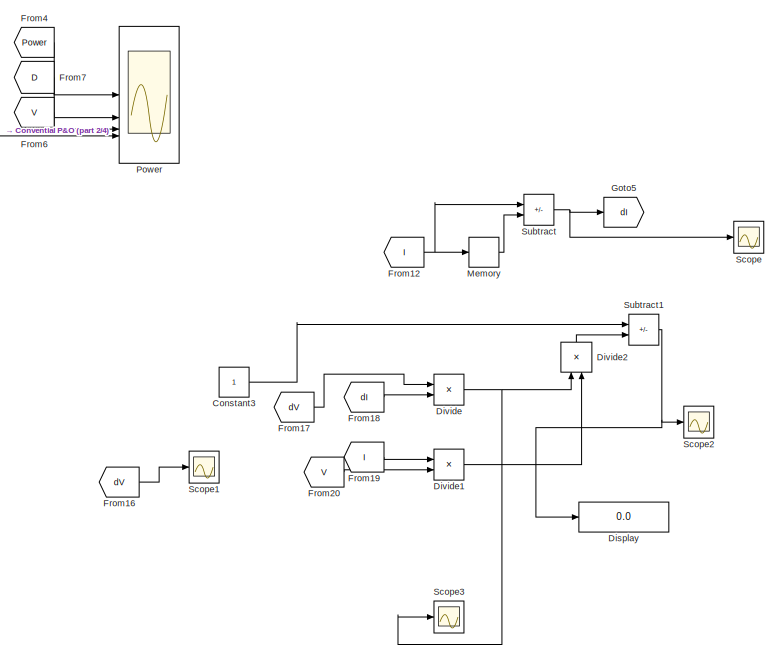
[diagram: root canvas - part 1/4, top right region]
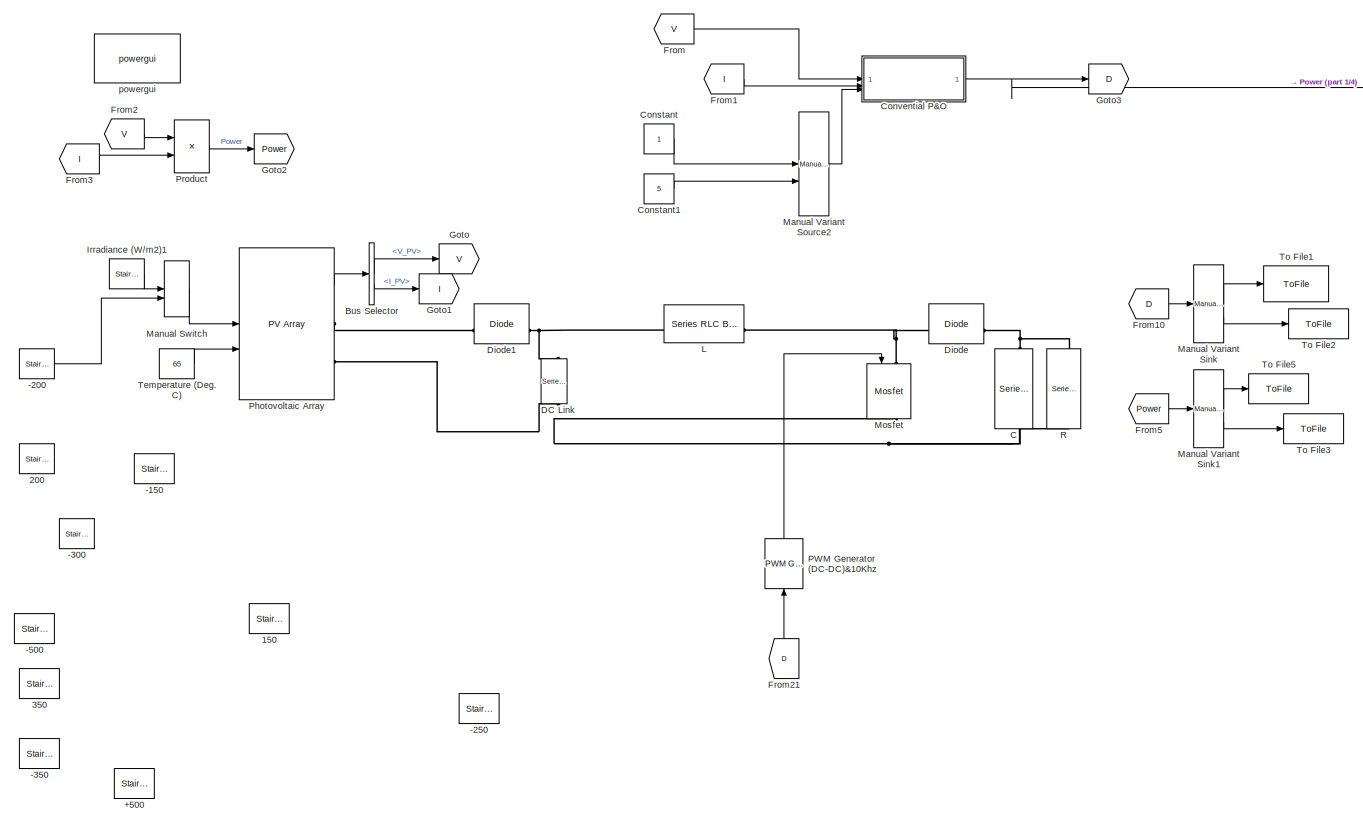
[diagram: root canvas - part 2/4, central region]
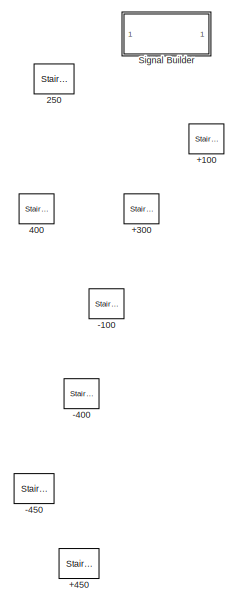
[diagram: root canvas - part 3/4, middle left region]
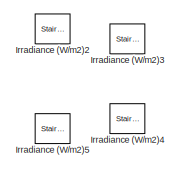
[diagram: root canvas - part 4/4, bottom left region]
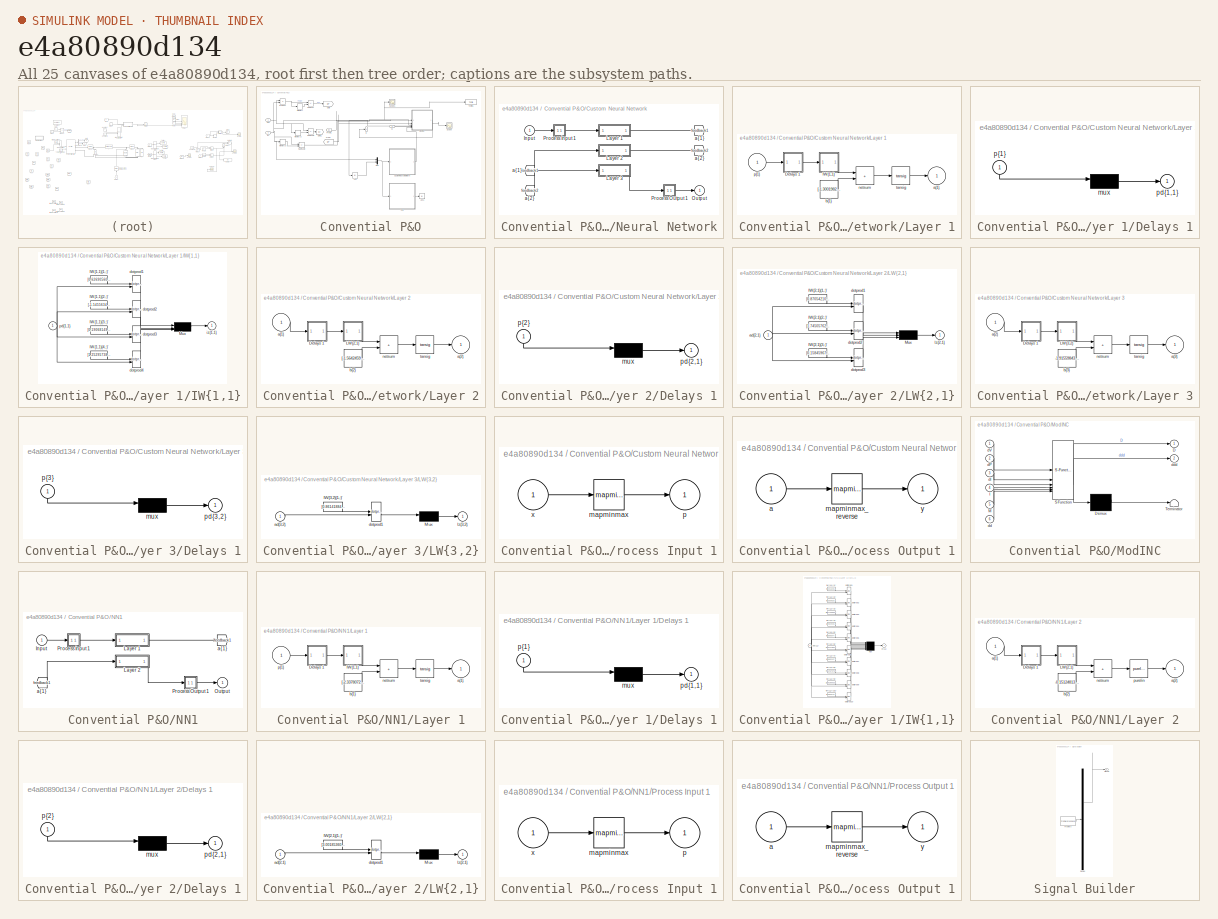
[diagram: thumbnail index - all 25 canvases of the model, root first then tree order]
MODEL slx_e4a80890d134
KIND model
CONFIG AbsTol = auto
CONFIG EnableMultiTasking = off
CONFIG FixedStep = auto
CONFIG MaxStep = auto
CONFIG MinStep = auto
CONFIG RelTol = 1e-3
CONFIG SampleTimeConstraint = Unconstrained
CONFIG SolverName = ode23tb
CONFIG StartTime = 0.0
CONFIG StopTime = 1.5
WORKSPACE source: mxarray member
WORKSPACE F: Simulink.Parameter (value not decoded)
BLOCK [Reference] +100  REF=spsStairGeneratorLib/Stair
Generator
  LibrarySourceBlock = sps_lib/Sources/Signal Generator Sources/Stair\nGenerator
  NameLocation = top
  SourceBlock = spsStairGeneratorLib/Stair\nGenerator
  SourceType = Stair Generator
BLOCK [Reference] +300  REF=spsStairGeneratorLib/Stair
Generator
  LibrarySourceBlock = sps_lib/Sources/Signal Generator Sources/Stair\nGenerator
  NameLocation = top
  SourceBlock = spsStairGeneratorLib/Stair\nGenerator
  SourceType = Stair Generator
BLOCK [Reference] +450  REF=spsStairGeneratorLib/Stair
Generator
  LibrarySourceBlock = sps_lib/Sources/Signal Generator Sources/Stair\nGenerator
  NameLocation = top
  SourceBlock = spsStairGeneratorLib/Stair\nGenerator
  SourceType = Stair Generator
BLOCK [Reference] +500  REF=spsStairGeneratorLib/Stair
Generator
  LibrarySourceBlock = sps_lib/Sources/Signal Generator Sources/Stair\nGenerator
  NameLocation = top
  SourceBlock = spsStairGeneratorLib/Stair\nGenerator
  SourceType = Stair Generator
BLOCK [Reference] -100  REF=spsStairGeneratorLib/Stair
Generator
  LibrarySourceBlock = sps_lib/Sources/Signal Generator Sources/Stair\nGenerator
  NameLocation = top
  SourceBlock = spsStairGeneratorLib/Stair\nGenerator
  SourceType = Stair Generator
BLOCK [Reference] -150  REF=spsStairGeneratorLib/Stair
Generator
  LibrarySourceBlock = sps_lib/Sources/Signal Generator Sources/Stair\nGenerator
  NameLocation = top
  SourceBlock = spsStairGeneratorLib/Stair\nGenerator
  SourceType = Stair Generator
BLOCK [Reference] -200  REF=spsStairGeneratorLib/Stair
Generator
  LibrarySourceBlock = sps_lib/Sources/Signal Generator Sources/Stair\nGenerator
  NameLocation = top
  SourceBlock = spsStairGeneratorLib/Stair\nGenerator
  SourceType = Stair Generator
BLOCK [Reference] -250  REF=spsStairGeneratorLib/Stair
Generator
  LibrarySourceBlock = sps_lib/Sources/Signal Generator Sources/Stair\nGenerator
  NameLocation = top
  SourceBlock = spsStairGeneratorLib/Stair\nGenerator
  SourceType = Stair Generator
BLOCK [Reference] -300  REF=spsStairGeneratorLib/Stair
Generator
  LibrarySourceBlock = sps_lib/Sources/Signal Generator Sources/Stair\nGenerator
  NameLocation = top
  SourceBlock = spsStairGeneratorLib/Stair\nGenerator
  SourceType = Stair Generator
BLOCK [Reference] -350  REF=spsStairGeneratorLib/Stair
Generator
  LibrarySourceBlock = sps_lib/Sources/Signal Generator Sources/Stair\nGenerator
  NameLocation = top
  SourceBlock = spsStairGeneratorLib/Stair\nGenerator
  SourceType = Stair Generator
BLOCK [Reference] -400  REF=spsStairGeneratorLib/Stair
Generator
  LibrarySourceBlock = sps_lib/Sources/Signal Generator Sources/Stair\nGenerator
  NameLocation = top
  SourceBlock = spsStairGeneratorLib/Stair\nGenerator
  SourceType = Stair Generator
BLOCK [Reference] -450  REF=spsStairGeneratorLib/Stair
Generator
  LibrarySourceBlock = sps_lib/Sources/Signal Generator Sources/Stair\nGenerator
  NameLocation = top
  SourceBlock = spsStairGeneratorLib/Stair\nGenerator
  SourceType = Stair Generator
BLOCK [Reference] -500  REF=spsStairGeneratorLib/Stair
Generator
  LibrarySourceBlock = sps_lib/Sources/Signal Generator Sources/Stair\nGenerator
  NameLocation = top
  SourceBlock = spsStairGeneratorLib/Stair\nGenerator
  SourceType = Stair Generator
BLOCK [Reference] 150  REF=spsStairGeneratorLib/Stair
Generator
  LibrarySourceBlock = sps_lib/Sources/Signal Generator Sources/Stair\nGenerator
  NameLocation = top
  SourceBlock = spsStairGeneratorLib/Stair\nGenerator
  SourceType = Stair Generator
BLOCK [Reference] 200  REF=spsStairGeneratorLib/Stair
Generator
  LibrarySourceBlock = sps_lib/Sources/Signal Generator Sources/Stair\nGenerator
  NameLocation = top
  SourceBlock = spsStairGeneratorLib/Stair\nGenerator
  SourceType = Stair Generator
BLOCK [Reference] 250  REF=spsStairGeneratorLib/Stair
Generator
  LibrarySourceBlock = sps_lib/Sources/Signal Generator Sources/Stair\nGenerator
  NameLocation = top
  SourceBlock = spsStairGeneratorLib/Stair\nGenerator
  SourceType = Stair Generator
BLOCK [Reference] 350  REF=spsStairGeneratorLib/Stair
Generator
  LibrarySourceBlock = sps_lib/Sources/Signal Generator Sources/Stair\nGenerator
  NameLocation = top
  SourceBlock = spsStairGeneratorLib/Stair\nGenerator
  SourceType = Stair Generator
BLOCK [Reference] 400  REF=spsStairGeneratorLib/Stair
Generator
  LibrarySourceBlock = sps_lib/Sources/Signal Generator Sources/Stair\nGenerator
  NameLocation = top
  SourceBlock = spsStairGeneratorLib/Stair\nGenerator
  SourceType = Stair Generator
BLOCK [BusSelector] Bus Selector
  OutputSignals = V_PV,I_PV
BLOCK [Reference] C  REF=spsSeriesRLCBranchLib/Series RLC Branch
  LibrarySourceBlock = sps_lib/Passives/Series RLC Branch
  NameLocation = left
  SourceBlock = spsSeriesRLCBranchLib/Series RLC Branch
  SourceType = Series RLC Branch
BLOCK [Constant] Constant
BLOCK [Constant] Constant1
  Value = 5
BLOCK [Constant] Constant3
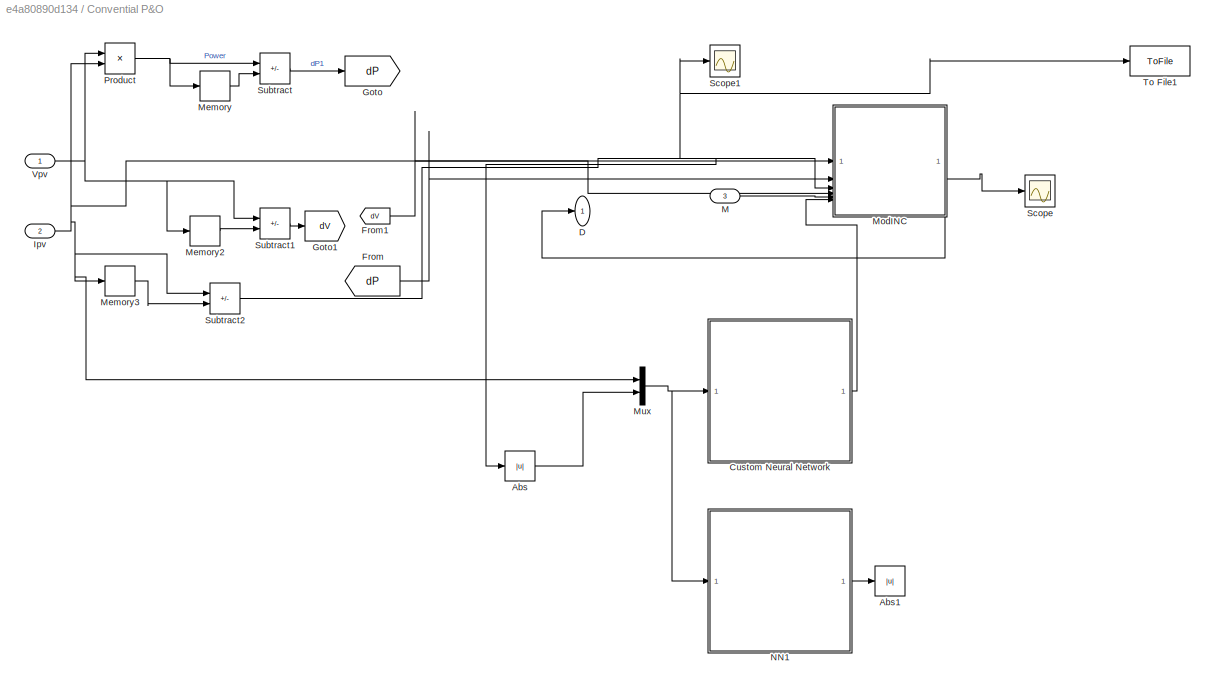
BLOCK [SubSystem] Convential P&O
BLOCK [Abs] Convential P&O/Abs
  SaturateOnIntegerOverflow = off
BLOCK [Abs] Convential P&O/Abs1
  SaturateOnIntegerOverflow = off
BLOCK [SubSystem] Convential P&O/Custom Neural Network
BLOCK [From] Convential P&O/Custom Neural Network/ a{1} 
  GotoTag = feedback1
BLOCK [From] Convential P&O/Custom Neural Network/ a{2} 
  GotoTag = feedback2
BLOCK [Inport] Convential P&O/Custom Neural Network/Input
  PortDimensions = 2
BLOCK [SubSystem] Convential P&O/Custom Neural Network/Layer 1
BLOCK [SubSystem] Convential P&O/Custom Neural Network/Layer 1/Delays 1
BLOCK [Mux] Convential P&O/Custom Neural Network/Layer 1/Delays 1/mux
  Inputs = 1
BLOCK [Outport] Convential P&O/Custom Neural Network/Layer 1/Delays 1/pd{1,1}
  VectorParamsAs1DForOutWhenUnconnected = off
BLOCK [Inport] Convential P&O/Custom Neural Network/Layer 1/Delays 1/p{1}
  NameLocation = left
  PortDimensions = 2
BLOCK [SubSystem] Convential P&O/Custom Neural Network/Layer 1/IW{1,1}
BLOCK [Constant] Convential P&O/Custom Neural Network/Layer 1/IW{1,1}/IW{1,1}(1,:)'
  Value = [0.62690560941322714949563987829606048762798309326171875;2.225261853073857931661905240616761147975921630859375]
BLOCK [Constant] Convential P&O/Custom Neural Network/Layer 1/IW{1,1}/IW{1,1}(2,:)'
  Value = [-1.5455634348476230410796006253804080188274383544921875;-0.70591159253968893683151009099674411118030548095703125]
BLOCK [Constant] Convential P&O/Custom Neural Network/Layer 1/IW{1,1}/IW{1,1}(3,:)'
  Value = [0.19068149144769941383259492795332334935665130615234375;-0.71357536848170521892598117119632661342620849609375]
BLOCK [Constant] Convential P&O/Custom Neural Network/Layer 1/IW{1,1}/IW{1,1}(4,:)'
  Value = [1.252957382770755856427058461122214794158935546875;-1.88674771082560344126477502868510782718658447265625]
BLOCK [Mux] Convential P&O/Custom Neural Network/Layer 1/IW{1,1}/Mux
BLOCK [Reference] Convential P&O/Custom Neural Network/Layer 1/IW{1,1}/dotprod1  REF=neural/Weight Functions/dotprod
  SourceBlock = neural/Weight Functions/dotprod
  SourceType = DOTPROD
BLOCK [Reference] Convential P&O/Custom Neural Network/Layer 1/IW{1,1}/dotprod2  REF=neural/Weight Functions/dotprod
  SourceBlock = neural/Weight Functions/dotprod
  SourceType = DOTPROD
BLOCK [Reference] Convential P&O/Custom Neural Network/Layer 1/IW{1,1}/dotprod3  REF=neural/Weight Functions/dotprod
  SourceBlock = neural/Weight Functions/dotprod
  SourceType = DOTPROD
BLOCK [Reference] Convential P&O/Custom Neural Network/Layer 1/IW{1,1}/dotprod4  REF=neural/Weight Functions/dotprod
  SourceBlock = neural/Weight Functions/dotprod
  SourceType = DOTPROD
BLOCK [Outport] Convential P&O/Custom Neural Network/Layer 1/IW{1,1}/iz{1,1}
  VectorParamsAs1DForOutWhenUnconnected = off
BLOCK [Inport] Convential P&O/Custom Neural Network/Layer 1/IW{1,1}/pd{1,1}
  PortDimensions = 2
BLOCK [Outport] Convential P&O/Custom Neural Network/Layer 1/a{1}
  InitialOutput = [0;0;0;0]
  VectorParamsAs1DForOutWhenUnconnected = off
BLOCK [Constant] Convential P&O/Custom Neural Network/Layer 1/b{1}
  Value = [-1.300198268113132993306635398766957223415374755859375;-1.67272251770768232148611787124536931514739990234375;-1.065749130954053658371094570611603558063507080078125;1.83750827559132634547722773277200758457183837890625]
BLOCK [Sum] Convential P&O/Custom Neural Network/Layer 1/netsum
  IconShape = rectangular
  InputSameDT = on
  Inputs = 2
  OutDataTypeStr = Inherit: Same as first input
  SaturateOnIntegerOverflow = on
BLOCK [Inport] Convential P&O/Custom Neural Network/Layer 1/p{1}
  PortDimensions = 2
BLOCK [Reference] Convential P&O/Custom Neural Network/Layer 1/tansig  REF=neural/Transfer Functions/tansig
  SourceBlock = neural/Transfer Functions/tansig
  SourceType = TANSIG
BLOCK [SubSystem] Convential P&O/Custom Neural Network/Layer 2
BLOCK [SubSystem] Convential P&O/Custom Neural Network/Layer 2/Delays 1
BLOCK [Mux] Convential P&O/Custom Neural Network/Layer 2/Delays 1/mux
  Inputs = 1
BLOCK [Outport] Convential P&O/Custom Neural Network/Layer 2/Delays 1/pd{2,1}
  VectorParamsAs1DForOutWhenUnconnected = off
BLOCK [Inport] Convential P&O/Custom Neural Network/Layer 2/Delays 1/p{2}
  NameLocation = left
  PortDimensions = 4
BLOCK [SubSystem] Convential P&O/Custom Neural Network/Layer 2/LW{2,1}
BLOCK [Constant] Convential P&O/Custom Neural Network/Layer 2/LW{2,1}/IW{2,1}(1,:)'
  Value = [0.870542109018755727589677917421795427799224853515625;-0.6171543423372372050295098233618773519992828369140625;-1.2866083090246036579884503225912339985370635986328125;0.477460270896930050188444738523685373365879058837890625]
BLOCK [Constant] Convential P&O/Custom Neural Network/Layer 2/LW{2,1}/IW{2,1}(2,:)'
  Value = [1.7450576276769407257916100206784904003143310546875;-1.9278651739897070260809641695232130587100982666015625;2.25746452353028548287738885846920311450958251953125;1.710452857773581580858035522396676242351531982421875]
BLOCK [Constant] Convential P&O/Custom Neural Network/Layer 2/LW{2,1}/IW{2,1}(3,:)'
  Value = [0.15845967834931318218849582990515045821666717529296875;-2.261488188350197159337540142587386071681976318359375;0.392915946141931871071761861458071507513523101806640625;0.194176598623952700872763443840085528790950775146484375]
BLOCK [Mux] Convential P&O/Custom Neural Network/Layer 2/LW{2,1}/Mux
  Inputs = 3
BLOCK [Inport] Convential P&O/Custom Neural Network/Layer 2/LW{2,1}/ad{2,1}
  PortDimensions = 4
BLOCK [Reference] Convential P&O/Custom Neural Network/Layer 2/LW{2,1}/dotprod1  REF=neural/Weight Functions/dotprod
  SourceBlock = neural/Weight Functions/dotprod
  SourceType = DOTPROD
BLOCK [Reference] Convential P&O/Custom Neural Network/Layer 2/LW{2,1}/dotprod2  REF=neural/Weight Functions/dotprod
  SourceBlock = neural/Weight Functions/dotprod
  SourceType = DOTPROD
BLOCK [Reference] Convential P&O/Custom Neural Network/Layer 2/LW{2,1}/dotprod3  REF=neural/Weight Functions/dotprod
  SourceBlock = neural/Weight Functions/dotprod
  SourceType = DOTPROD
BLOCK [Outport] Convential P&O/Custom Neural Network/Layer 2/LW{2,1}/lz{2,1}
  VectorParamsAs1DForOutWhenUnconnected = off
BLOCK [Inport] Convential P&O/Custom Neural Network/Layer 2/a{1} 
  PortDimensions = 4
BLOCK [Outport] Convential P&O/Custom Neural Network/Layer 2/a{2}
  InitialOutput = [0;0;0]
  VectorParamsAs1DForOutWhenUnconnected = off
BLOCK [Constant] Convential P&O/Custom Neural Network/Layer 2/b{2}
  Value = [-1.56424591456167405567612149752676486968994140625;0.06674930344295294804002338651116588152945041656494140625;0.5231441199422139920471863661077804863452911376953125]
BLOCK [Sum] Convential P&O/Custom Neural Network/Layer 2/netsum
  IconShape = rectangular
  InputSameDT = on
  Inputs = 2
  OutDataTypeStr = Inherit: Same as first input
  SaturateOnIntegerOverflow = on
BLOCK [Reference] Convential P&O/Custom Neural Network/Layer 2/tansig  REF=neural/Transfer Functions/tansig
  SourceBlock = neural/Transfer Functions/tansig
  SourceType = TANSIG
BLOCK [SubSystem] Convential P&O/Custom Neural Network/Layer 3
BLOCK [SubSystem] Convential P&O/Custom Neural Network/Layer 3/Delays 1
BLOCK [Mux] Convential P&O/Custom Neural Network/Layer 3/Delays 1/mux
  Inputs = 1
BLOCK [Outport] Convential P&O/Custom Neural Network/Layer 3/Delays 1/pd{3,2}
  VectorParamsAs1DForOutWhenUnconnected = off
BLOCK [Inport] Convential P&O/Custom Neural Network/Layer 3/Delays 1/p{3}
  NameLocation = left
  PortDimensions = 3
BLOCK [SubSystem] Convential P&O/Custom Neural Network/Layer 3/LW{3,2}
BLOCK [Constant] Convential P&O/Custom Neural Network/Layer 3/LW{3,2}/IW{3,2}(1,:)'
  Value = [0.861418848615543186753029658575542271137237548828125;-1.0445470387439421688924312547896988689899444580078125;2.074571011362420502877057515433989465236663818359375]
BLOCK [Mux] Convential P&O/Custom Neural Network/Layer 3/LW{3,2}/Mux
  Inputs = 1
BLOCK [Inport] Convential P&O/Custom Neural Network/Layer 3/LW{3,2}/ad{3,2}
  PortDimensions = 3
BLOCK [Reference] Convential P&O/Custom Neural Network/Layer 3/LW{3,2}/dotprod1  REF=neural/Weight Functions/dotprod
  SourceBlock = neural/Weight Functions/dotprod
  SourceType = DOTPROD
BLOCK [Outport] Convential P&O/Custom Neural Network/Layer 3/LW{3,2}/lz{3,2}
  VectorParamsAs1DForOutWhenUnconnected = off
BLOCK [Inport] Convential P&O/Custom Neural Network/Layer 3/a{2} 
  PortDimensions = 3
BLOCK [Outport] Convential P&O/Custom Neural Network/Layer 3/a{3}
  InitialOutput = 0
  VectorParamsAs1DForOutWhenUnconnected = off
BLOCK [Constant] Convential P&O/Custom Neural Network/Layer 3/b{3}
  Value = -1.9155984314101039966971029571141116321086883544921875
BLOCK [Sum] Convential P&O/Custom Neural Network/Layer 3/netsum
  IconShape = rectangular
  InputSameDT = on
  Inputs = 2
  OutDataTypeStr = Inherit: Same as first input
  SaturateOnIntegerOverflow = on
BLOCK [Reference] Convential P&O/Custom Neural Network/Layer 3/tansig  REF=neural/Transfer Functions/tansig
  SourceBlock = neural/Transfer Functions/tansig
  SourceType = TANSIG
BLOCK [Outport] Convential P&O/Custom Neural Network/Output
  InitialOutput = 0
  VectorParamsAs1DForOutWhenUnconnected = off
BLOCK [SubSystem] Convential P&O/Custom Neural Network/Process Input 1
BLOCK [Reference] Convential P&O/Custom Neural Network/Process Input 1/mapminmax  REF=neural/Processing Functions/mapminmax
  SourceBlock = neural/Processing Functions/mapminmax
  SourceType = MAPMINMAX Preprocess
BLOCK [Outport] Convential P&O/Custom Neural Network/Process Input 1/p
  PortDimensions = 2
  VectorParamsAs1DForOutWhenUnconnected = off
BLOCK [Inport] Convential P&O/Custom Neural Network/Process Input 1/x
  PortDimensions = 2
BLOCK [SubSystem] Convential P&O/Custom Neural Network/Process Output 1
BLOCK [Inport] Convential P&O/Custom Neural Network/Process Output 1/a
  PortDimensions = 1
BLOCK [Reference] Convential P&O/Custom Neural Network/Process Output 1/mapminmax_reverse  REF=neural/Processing Functions/mapminmax_reverse
  SourceBlock = neural/Processing Functions/mapminmax_reverse
  SourceType = MAPMINMAX Reverse Process
BLOCK [Outport] Convential P&O/Custom Neural Network/Process Output 1/y
  PortDimensions = 1
  VectorParamsAs1DForOutWhenUnconnected = off
BLOCK [Goto] Convential P&O/Custom Neural Network/a{1}
  GotoTag = feedback1
BLOCK [Goto] Convential P&O/Custom Neural Network/a{2}
  GotoTag = feedback2
BLOCK [Outport] Convential P&O/D
  NameLocation = top
  VectorParamsAs1DForOutWhenUnconnected = off
BLOCK [From] Convential P&O/From
  GotoTag = dP
  TagVisibility = global
BLOCK [From] Convential P&O/From1
  GotoTag = dV
  TagVisibility = global
BLOCK [Goto] Convential P&O/Goto
  GotoTag = dP
  TagVisibility = global
BLOCK [Goto] Convential P&O/Goto1
  GotoTag = dV
  TagVisibility = global
BLOCK [Inport] Convential P&O/Ipv
  Port = 2
BLOCK [Inport] Convential P&O/M
  Port = 3
BLOCK [Memory] Convential P&O/Memory
BLOCK [Memory] Convential P&O/Memory2
BLOCK [Memory] Convential P&O/Memory3
BLOCK [SubSystem] Convential P&O/ModINC
  ErrorFcn = Stateflow.Translate.translate
  PermitHierarchicalResolution = ExplicitOnly
  SFBlockType = MATLAB Function
  TreatAsAtomicUnit = on
BLOCK [Demux] Convential P&O/ModINC/ Demux 
  Outputs = 1
BLOCK [S-Function] Convential P&O/ModINC/ SFunction 
  EnableBusSupport = on
  FunctionName = sf_sfun
  PortCounts = [6 3]
  SFcnIsStateOwnerBlock = off
  SFunctionDeploymentMode = off
  Tag = Stateflow S-Function 1
BLOCK [Terminator] Convential P&O/ModINC/ Terminator 
BLOCK [Outport] Convential P&O/ModINC/D
  VectorParamsAs1DForOutWhenUnconnected = off
BLOCK [Inport] Convential P&O/ModINC/I
  Port = 4
BLOCK [Inport] Convential P&O/ModINC/M
  Port = 5
BLOCK [Inport] Convential P&O/ModINC/dI
  Port = 3
BLOCK [Inport] Convential P&O/ModINC/dP
  Port = 2
BLOCK [Inport] Convential P&O/ModINC/dV
BLOCK [Inport] Convential P&O/ModINC/dd
  Port = 6
BLOCK [Outport] Convential P&O/ModINC/ddd
  Port = 2
  VectorParamsAs1DForOutWhenUnconnected = off
BLOCK [Mux] Convential P&O/Mux
  DisplayOption = bar
  Inputs = 2
BLOCK [SubSystem] Convential P&O/NN1
BLOCK [From] Convential P&O/NN1/ a{1} 
  GotoTag = feedback1
BLOCK [Inport] Convential P&O/NN1/Input
  PortDimensions = 2
BLOCK [SubSystem] Convential P&O/NN1/Layer 1
BLOCK [SubSystem] Convential P&O/NN1/Layer 1/Delays 1
BLOCK [Mux] Convential P&O/NN1/Layer 1/Delays 1/mux
  Inputs = 1
BLOCK [Outport] Convential P&O/NN1/Layer 1/Delays 1/pd{1,1}
BLOCK [Inport] Convential P&O/NN1/Layer 1/Delays 1/p{1}
  NameLocation = left
  PortDimensions = 2
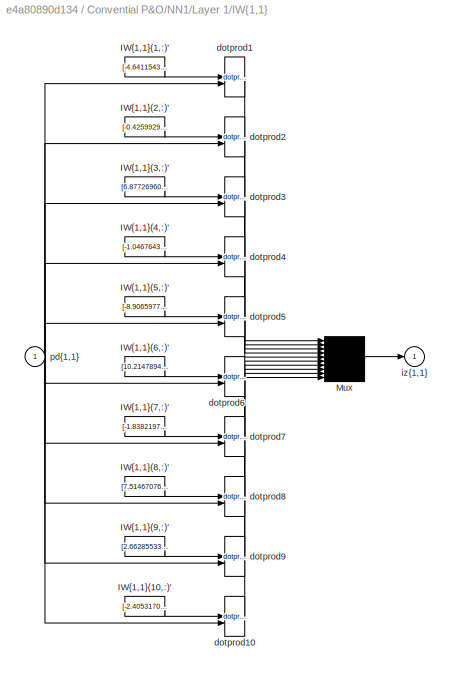
BLOCK [SubSystem] Convential P&O/NN1/Layer 1/IW{1,1}
BLOCK [Constant] Convential P&O/NN1/Layer 1/IW{1,1}/IW{1,1}(1,:)'
  Value = [-4.64115433280815192773616217891685664653778076171875;-0.023031216449184564731833546602501883171498775482177734375]
BLOCK [Constant] Convential P&O/NN1/Layer 1/IW{1,1}/IW{1,1}(10,:)'
  Value = [-2.405317062963436836042774302768521010875701904296875;-0.0280785795161612485026925156716970377601683139801025390625]
BLOCK [Constant] Convential P&O/NN1/Layer 1/IW{1,1}/IW{1,1}(2,:)'
  Value = [-0.42599296825494514795451550526195205748081207275390625;-0.1397218869017376186025813922242377884685993194580078125]
BLOCK [Constant] Convential P&O/NN1/Layer 1/IW{1,1}/IW{1,1}(3,:)'
  Value = [6.87726960008622878461892469204030930995941162109375;3.4141839822855590824701721430756151676177978515625]
BLOCK [Constant] Convential P&O/NN1/Layer 1/IW{1,1}/IW{1,1}(4,:)'
  Value = [-1.0467643602677483283258652591030113399028778076171875;-0.48218709698469364166584227859857492148876190185546875]
BLOCK [Constant] Convential P&O/NN1/Layer 1/IW{1,1}/IW{1,1}(5,:)'
  Value = [-8.9065977041147874615489854477345943450927734375;-4.44630866830523441279865437536500394344329833984375]
BLOCK [Constant] Convential P&O/NN1/Layer 1/IW{1,1}/IW{1,1}(6,:)'
  Value = [10.214789423883051000530031160451471805572509765625;0.0214678992400209878166350563333253376185894012451171875]
BLOCK [Constant] Convential P&O/NN1/Layer 1/IW{1,1}/IW{1,1}(7,:)'
  Value = [-1.838219724942488308983001843444071710109710693359375;-0.85952203786519365547036386487889103591442108154296875]
BLOCK [Constant] Convential P&O/NN1/Layer 1/IW{1,1}/IW{1,1}(8,:)'
  Value = [7.51467076860439942009861624683253467082977294921875;0.0230724495338865513704984522291852044872939586639404296875]
BLOCK [Constant] Convential P&O/NN1/Layer 1/IW{1,1}/IW{1,1}(9,:)'
  Value = [2.66285533355114711895339496550150215625762939453125;-0.00432689752477091911508910726524845813401043415069580078125]
BLOCK [Mux] Convential P&O/NN1/Layer 1/IW{1,1}/Mux
  Inputs = 10
BLOCK [Reference] Convential P&O/NN1/Layer 1/IW{1,1}/dotprod1  REF=neural/Weight Functions/dotprod
  SourceBlock = neural/Weight Functions/dotprod
  SourceType = DOTPROD
BLOCK [Reference] Convential P&O/NN1/Layer 1/IW{1,1}/dotprod10  REF=neural/Weight Functions/dotprod
  SourceBlock = neural/Weight Functions/dotprod
  SourceType = DOTPROD
BLOCK [Reference] Convential P&O/NN1/Layer 1/IW{1,1}/dotprod2  REF=neural/Weight Functions/dotprod
  SourceBlock = neural/Weight Functions/dotprod
  SourceType = DOTPROD
BLOCK [Reference] Convential P&O/NN1/Layer 1/IW{1,1}/dotprod3  REF=neural/Weight Functions/dotprod
  SourceBlock = neural/Weight Functions/dotprod
  SourceType = DOTPROD
BLOCK [Reference] Convential P&O/NN1/Layer 1/IW{1,1}/dotprod4  REF=neural/Weight Functions/dotprod
  SourceBlock = neural/Weight Functions/dotprod
  SourceType = DOTPROD
BLOCK [Reference] Convential P&O/NN1/Layer 1/IW{1,1}/dotprod5  REF=neural/Weight Functions/dotprod
  SourceBlock = neural/Weight Functions/dotprod
  SourceType = DOTPROD
BLOCK [Reference] Convential P&O/NN1/Layer 1/IW{1,1}/dotprod6  REF=neural/Weight Functions/dotprod
  SourceBlock = neural/Weight Functions/dotprod
  SourceType = DOTPROD
BLOCK [Reference] Convential P&O/NN1/Layer 1/IW{1,1}/dotprod7  REF=neural/Weight Functions/dotprod
  SourceBlock = neural/Weight Functions/dotprod
  SourceType = DOTPROD
BLOCK [Reference] Convential P&O/NN1/Layer 1/IW{1,1}/dotprod8  REF=neural/Weight Functions/dotprod
  SourceBlock = neural/Weight Functions/dotprod
  SourceType = DOTPROD
BLOCK [Reference] Convential P&O/NN1/Layer 1/IW{1,1}/dotprod9  REF=neural/Weight Functions/dotprod
  SourceBlock = neural/Weight Functions/dotprod
  SourceType = DOTPROD
BLOCK [Outport] Convential P&O/NN1/Layer 1/IW{1,1}/iz{1,1}
BLOCK [Inport] Convential P&O/NN1/Layer 1/IW{1,1}/pd{1,1}
  PortDimensions = 2
BLOCK [Outport] Convential P&O/NN1/Layer 1/a{1}
  InitialOutput = [0;0;0;0;0;0;0;0;0;0]
BLOCK [Constant] Convential P&O/NN1/Layer 1/b{1}
  Value = [-2.3378072739385107325915669207461178302764892578125;-0.1963012800732785445578798544374876655638217926025390625;8.0636980865450684774486944661475718021392822265625;0.186902240692041698988390407976112328469753265380859375;-10.7098011058904045711415164987556636333465576171875;5.25169487877275287246447987854480743408203125;-1.5644081174003101608604993089102208614349365234375;3.9062735705443554223847...<+139ch>
BLOCK [Sum] Convential P&O/NN1/Layer 1/netsum
  IconShape = rectangular
  InputSameDT = on
  Inputs = 2
  OutDataTypeStr = Inherit: Same as first input
  SaturateOnIntegerOverflow = on
BLOCK [Inport] Convential P&O/NN1/Layer 1/p{1}
  PortDimensions = 2
BLOCK [Reference] Convential P&O/NN1/Layer 1/tansig  REF=neural/Transfer Functions/tansig
  SourceBlock = neural/Transfer Functions/tansig
  SourceType = TANSIG
BLOCK [SubSystem] Convential P&O/NN1/Layer 2
BLOCK [SubSystem] Convential P&O/NN1/Layer 2/Delays 1
BLOCK [Mux] Convential P&O/NN1/Layer 2/Delays 1/mux
  Inputs = 1
BLOCK [Outport] Convential P&O/NN1/Layer 2/Delays 1/pd{2,1}
BLOCK [Inport] Convential P&O/NN1/Layer 2/Delays 1/p{2}
  NameLocation = left
  PortDimensions = 10
BLOCK [SubSystem] Convential P&O/NN1/Layer 2/LW{2,1}
BLOCK [Constant] Convential P&O/NN1/Layer 2/LW{2,1}/IW{2,1}(1,:)'
  Value = [3.00185360993864147616250193095766007900238037109375;7.66063742588404839040094884694553911685943603515625;1.4094334945219568755447880903375335037708282470703125;-2.564523850148898720391343886149115860462188720703125;1.1238350181709593211820674696355126798152923583984375;-1.7658524127442658535613873027614317834377288818359375;-1.6307661669830324502328267044504173099994659423828125;3.21087168551113...<+148ch>
BLOCK [Mux] Convential P&O/NN1/Layer 2/LW{2,1}/Mux
  Inputs = 1
BLOCK [Inport] Convential P&O/NN1/Layer 2/LW{2,1}/ad{2,1}
  PortDimensions = 10
BLOCK [Reference] Convential P&O/NN1/Layer 2/LW{2,1}/dotprod1  REF=neural/Weight Functions/dotprod
  SourceBlock = neural/Weight Functions/dotprod
  SourceType = DOTPROD
BLOCK [Outport] Convential P&O/NN1/Layer 2/LW{2,1}/lz{2,1}
BLOCK [Inport] Convential P&O/NN1/Layer 2/a{1} 
  PortDimensions = 10
BLOCK [Outport] Convential P&O/NN1/Layer 2/a{2}
  InitialOutput = 0
BLOCK [Constant] Convential P&O/NN1/Layer 2/b{2}
  Value = -0.1512481338392126228864498216353240422904491424560546875
BLOCK [Sum] Convential P&O/NN1/Layer 2/netsum
  IconShape = rectangular
  InputSameDT = on
  Inputs = 2
  OutDataTypeStr = Inherit: Same as first input
  SaturateOnIntegerOverflow = on
BLOCK [Reference] Convential P&O/NN1/Layer 2/purelin  REF=neural/Transfer Functions/purelin
  SourceBlock = neural/Transfer Functions/purelin
  SourceType = PURELIN
BLOCK [Outport] Convential P&O/NN1/Output
  InitialOutput = 0
BLOCK [SubSystem] Convential P&O/NN1/Process Input 1
BLOCK [Reference] Convential P&O/NN1/Process Input 1/mapminmax  REF=neural/Processing Functions/mapminmax
  SourceBlock = neural/Processing Functions/mapminmax
  SourceType = MAPMINMAX Preprocess
BLOCK [Outport] Convential P&O/NN1/Process Input 1/p
  PortDimensions = 2
BLOCK [Inport] Convential P&O/NN1/Process Input 1/x
  PortDimensions = 2
BLOCK [SubSystem] Convential P&O/NN1/Process Output 1
BLOCK [Inport] Convential P&O/NN1/Process Output 1/a
  PortDimensions = 1
BLOCK [Reference] Convential P&O/NN1/Process Output 1/mapminmax_reverse  REF=neural/Processing Functions/mapminmax_reverse
  SourceBlock = neural/Processing Functions/mapminmax_reverse
  SourceType = MAPMINMAX Reverse Process
BLOCK [Outport] Convential P&O/NN1/Process Output 1/y
  PortDimensions = 1
BLOCK [Goto] Convential P&O/NN1/a{1}
  GotoTag = feedback1
BLOCK [Product] Convential P&O/Product
BLOCK [Scope] Convential P&O/Scope
  Floating = off
  NumInputPorts = 1
  ScopeSpecificationString = Simulink.scopes.TimeScopeBlockCfg('CurrentConfiguration', extmgr.ConfigurationSet(extmgr.Configuration('Core','General UI',true),extmgr.Configuration('Core','Source UI',true),extmgr.Configuration('Sources','WiredSimulink',true,'DataLoggingVariableName','ScopeData1'),extmgr.Configuration('Visuals','Time Domain',true,'SerializedDisplays',{struct('MinYLimReal','-0.4126','MaxYLimReal','0.36112','YLabe...<+1413ch>
BLOCK [Scope] Convential P&O/Scope1
  Floating = off
  NumInputPorts = 1
  ScopeSpecificationString = Simulink.scopes.TimeScopeBlockCfg('CurrentConfiguration', extmgr.ConfigurationSet(extmgr.Configuration('Core','General UI',true),extmgr.Configuration('Core','Source UI',true),extmgr.Configuration('Sources','WiredSimulink',true,'DataLoggingVariableName','ScopeData2'),extmgr.Configuration('Visuals','Time Domain',true,'SerializedDisplays',{struct('MinYLimReal','-1.03995','MaxYLimReal','0.37718','YLab...<+1412ch>
BLOCK [Sum] Convential P&O/Subtract
  IconShape = rectangular
  Inputs = +-
BLOCK [Sum] Convential P&O/Subtract1
  IconShape = rectangular
  Inputs = +-
BLOCK [Sum] Convential P&O/Subtract2
  IconShape = rectangular
  Inputs = +-
BLOCK [ToFile] Convential P&O/To File1
  Filename = di.mat
  MatrixName = di
  SaveFormat = Timeseries
BLOCK [Inport] Convential P&O/Vpv
BLOCK [Reference] DC Link  REF=spsSeriesRLCBranchLib/Series RLC Branch
  AttributesFormatString = \n
  LibrarySourceBlock = sps_lib/Passives/Series RLC Branch
  NameLocation = left
  SourceBlock = spsSeriesRLCBranchLib/Series RLC Branch
  SourceType = Series RLC Branch
BLOCK [Reference] Diode  REF=spsDiodeLib/Diode
  LibrarySourceBlock = sps_lib/Power Electronics/Diode
  SourceBlock = spsDiodeLib/Diode
  SourceType = Diode
BLOCK [Reference] Diode1  REF=spsDiodeLib/Diode
  LibrarySourceBlock = sps_lib/Power Electronics/Diode
  SourceBlock = spsDiodeLib/Diode
  SourceType = Diode
BLOCK [Display] Display
  Decimation = 1
BLOCK [Product] Divide
  Inputs = */
BLOCK [Product] Divide1
  Inputs = */
BLOCK [Product] Divide2
  Inputs = */
  NameLocation = right
BLOCK [From] From
  GotoTag = V
BLOCK [From] From1
  GotoTag = I
BLOCK [From] From10
  GotoTag = D
BLOCK [From] From12
  GotoTag = I
BLOCK [From] From16
  GotoTag = dV
  TagVisibility = global
BLOCK [From] From17
  GotoTag = dV
  TagVisibility = global
BLOCK [From] From18
  GotoTag = dI
BLOCK [From] From19
  GotoTag = I
BLOCK [From] From2
  GotoTag = V
BLOCK [From] From20
  GotoTag = V
BLOCK [From] From21
  GotoTag = D
  NameLocation = right
BLOCK [From] From3
  GotoTag = I
BLOCK [From] From4
  GotoTag = Power
BLOCK [From] From5
  GotoTag = Power
BLOCK [From] From6
  GotoTag = V
BLOCK [From] From7
  GotoTag = D
BLOCK [Goto] Goto
  GotoTag = V
BLOCK [Goto] Goto1
  GotoTag = I
BLOCK [Goto] Goto2
  GotoTag = Power
BLOCK [Goto] Goto3
  GotoTag = D
BLOCK [Goto] Goto5
  GotoTag = dI
BLOCK [Reference] Irradiance (W//m2)1  REF=spsStairGeneratorLib/Stair
Generator
  LibrarySourceBlock = sps_lib/Sources/Signal Generator Sources/Stair\nGenerator
  NameLocation = top
  SourceBlock = spsStairGeneratorLib/Stair\nGenerator
  SourceType = Stair Generator
BLOCK [Reference] Irradiance (W//m2)2  REF=spsStairGeneratorLib/Stair
Generator
  Commented = on
  LibrarySourceBlock = sps_lib/Sources/Signal Generator Sources/Stair\nGenerator
  NameLocation = top
  SourceBlock = spsStairGeneratorLib/Stair\nGenerator
  SourceType = Stair Generator
BLOCK [Reference] Irradiance (W//m2)3  REF=spsStairGeneratorLib/Stair
Generator
  Commented = on
  LibrarySourceBlock = sps_lib/Sources/Signal Generator Sources/Stair\nGenerator
  NameLocation = top
  SourceBlock = spsStairGeneratorLib/Stair\nGenerator
  SourceType = Stair Generator
BLOCK [Reference] Irradiance (W//m2)4  REF=spsStairGeneratorLib/Stair
Generator
  Commented = on
  LibrarySourceBlock = sps_lib/Sources/Signal Generator Sources/Stair\nGenerator
  NameLocation = top
  SourceBlock = spsStairGeneratorLib/Stair\nGenerator
  SourceType = Stair Generator
BLOCK [Reference] Irradiance (W//m2)5  REF=spsStairGeneratorLib/Stair
Generator
  Commented = on
  LibrarySourceBlock = sps_lib/Sources/Signal Generator Sources/Stair\nGenerator
  NameLocation = top
  SourceBlock = spsStairGeneratorLib/Stair\nGenerator
  SourceType = Stair Generator
BLOCK [Reference] L  REF=spsSeriesRLCBranchLib/Series RLC Branch
  LibrarySourceBlock = sps_lib/Passives/Series RLC Branch
  SourceBlock = spsSeriesRLCBranchLib/Series RLC Branch
  SourceType = Series RLC Branch
BLOCK [ManualSwitch] Manual Switch
  CurrentSetting = 0
BLOCK [Reference] Manual Variant Sink  REF=simulink/Signal
Routing/Manual
Variant Sink
  SourceBlock = simulink/Signal\nRouting/Manual\nVariant Sink
  SourceType = ManualVariantSink
BLOCK [Reference] Manual Variant Sink1  REF=simulink/Signal
Routing/Manual
Variant Sink
  SourceBlock = simulink/Signal\nRouting/Manual\nVariant Sink
  SourceType = ManualVariantSink
BLOCK [Reference] Manual Variant Source2  REF=simulink/Signal
Routing/Manual
Variant Source
  SourceBlock = simulink/Signal\nRouting/Manual\nVariant Source
  SourceType = ManualVariantSource
BLOCK [Memory] Memory
BLOCK [Reference] Mosfet  REF=spsMosfetLib/Mosfet
  LibrarySourceBlock = sps_lib/Power Electronics/Mosfet
  NameLocation = left
  SourceBlock = spsMosfetLib/Mosfet
  SourceType = Mosfet
BLOCK [Reference] PWM Generator (DC-DC)&10Khz  REF=spsPWMGeneratorDCDCLib/PWM Generator
(DC-DC)
  LibrarySourceBlock = sps_lib/Power Electronics/Power Electronics Control/PWM Generator\n(DC-DC)
  NameLocation = right
  SourceBlock = spsPWMGeneratorDCDCLib/PWM Generator\n(DC-DC)
  SourceType = PWM Generator (DC-DC)
BLOCK [Reference] Photovoltaic Array  REF=spsPVArrayLib/PV Array
  AttributesFormatString = %<ModuleName>\n%<Nser>-module string\n%<Npar> parallel strings
  LibrarySourceBlock = sps_lib/Sources/PV Array
  SourceBlock = spsPVArrayLib/PV Array
  SourceType = PV array
BLOCK [Scope] Power
  Floating = off
  NumInputPorts = 4
  ScopeSpecificationString = Simulink.scopes.TimeScopeBlockCfg('CurrentConfiguration', extmgr.ConfigurationSet(extmgr.Configuration('Core','General UI',true,'FigureColor',[0.156862745098039 0.156862745098039 0.156862745098039]),extmgr.Configuration('Core','Source UI',true),extmgr.Configuration('Sources','WiredSimulink',true,'DataLogging',true,'DataLoggingVariableName','pm','SampleTime','0','DataLoggingSaveFormat','StructureWi...<+4876ch>
BLOCK [Product] Product
  RndMeth = Zero
BLOCK [Reference] R  REF=spsSeriesRLCLoadLib/Series RLC Load
  AttributesFormatString = \n
  LibrarySourceBlock = sps_lib/Passives/Series RLC Load
  NameLocation = left
  SourceBlock = spsSeriesRLCLoadLib/Series RLC Load
  SourceType = Series RLC Load
BLOCK [Scope] Scope
  Floating = off
  NumInputPorts = 1
  ScopeSpecificationString = Simulink.scopes.TimeScopeBlockCfg('CurrentConfiguration', extmgr.ConfigurationSet(extmgr.Configuration('Core','General UI',true),extmgr.Configuration('Core','Source UI',true),extmgr.Configuration('Sources','WiredSimulink',true,'DataLoggingVariableName','ScopeData3'),extmgr.Configuration('Visuals','Time Domain',true,'SerializedDisplays',{struct('MinYLimReal','-2.95265','MaxYLimReal','26.56346','YLa...<+1415ch>
BLOCK [Scope] Scope1
  Floating = off
  NumInputPorts = 1
  ScopeSpecificationString = Simulink.scopes.TimeScopeBlockCfg('CurrentConfiguration', extmgr.ConfigurationSet(extmgr.Configuration('Core','General UI',true),extmgr.Configuration('Core','Source UI',true),extmgr.Configuration('Sources','WiredSimulink',true,'DataLoggingVariableName','ScopeData1'),extmgr.Configuration('Visuals','Time Domain',true,'SerializedDisplays',{struct('MinYLimReal','-0.1751','MaxYLimReal','0.92583','YLabe...<+1366ch>
BLOCK [Scope] Scope2
  Floating = off
  NumInputPorts = 1
  ScopeSpecificationString = Simulink.scopes.TimeScopeBlockCfg('CurrentConfiguration', extmgr.ConfigurationSet(extmgr.Configuration('Core','General UI',true),extmgr.Configuration('Core','Source UI',true),extmgr.Configuration('Sources','WiredSimulink',true,'DataLoggingVariableName','ScopeData2'),extmgr.Configuration('Visuals','Time Domain',true,'SerializedDisplays',{struct('MinYLimReal','-3718.79764','MaxYLimReal','3191.15617'...<+1409ch>
BLOCK [Scope] Scope3
  Floating = off
  NumInputPorts = 1
  ScopeSpecificationString = Simulink.scopes.TimeScopeBlockCfg('CurrentConfiguration', extmgr.ConfigurationSet(extmgr.Configuration('Core','General UI',true),extmgr.Configuration('Core','Source UI',true),extmgr.Configuration('Sources','WiredSimulink',true,'DataLoggingVariableName','ScopeData1'),extmgr.Configuration('Visuals','Time Domain',true,'SerializedDisplays',{struct('MinYLimReal','-1277.88135','MaxYLimReal','1253.10015'...<+1406ch>
BLOCK [SubSystem] Signal Builder
  ClipboardFcn = sigbuilder_block('clipboard');
  CloseFcn = sigbuilder_block('close');
  Commented = on
  ContinueFcn = sigbuilder_block('continue');
  CopyFcn = sigbuilder_block('copy');
  DeleteFcn = sigbuilder_block('delete');
  LoadFcn = sigbuilder_block('load');
  MaskHideContents = on
  ModelCloseFcn = sigbuilder_block('modelClose');
  NameChangeFcn = sigbuilder_block('namechange');
  OpenFcn = sigbuilder_block('open',[437.6 199.2 550.4 400 ]);
  PauseFcn = sigbuilder_block('pause');
  PreSaveFcn = sigbuilder_block('preSave');
  StartFcn = sigbuilder_block('start');
  StopFcn = sigbuilder_block('stop');
  Tag = STV Subsys
BLOCK [Demux] Signal Builder/Demux
  DisplayOption = none
  Outputs = 1
  Tag = STV Demux
BLOCK [FromWorkspace] Signal Builder/FromWs
  Tag = STV FromWs
  VariableName = tuvar
BLOCK [Outport] Signal Builder/Signal 1
  Tag = STV Outport
  VectorParamsAs1DForOutWhenUnconnected = off
BLOCK [Sum] Subtract
  IconShape = rectangular
  Inputs = +-
BLOCK [Sum] Subtract1
  IconShape = rectangular
  Inputs = +-
BLOCK [Constant] Temperature (Deg. C)
  Value = 65
BLOCK [ToFile] To File1
  Filename = sudden_D.mat
  MatrixName = sudden_D
  SaveFormat = Timeseries
BLOCK [ToFile] To File2
  Filename = Adaptive_D.mat
  MatrixName = Adaptive_D
  SaveFormat = Timeseries
BLOCK [ToFile] To File3
  Filename = Adaptive.mat
  MatrixName = Adaptive
  SaveFormat = Timeseries
BLOCK [ToFile] To File5
  Filename = Convential1.mat
  MatrixName = Convential1
  SaveFormat = Timeseries
BLOCK [Reference] powergui  REF=sps_lib/powergui
  LibrarySourceBlock = sps_lib/powergui
  Priority = 1
  SourceBlock = sps_lib/powergui
  SourceType = PSB option menu block
LINE -200:1 -> Manual Switch:2
LINE Bus Selector:1 -> Goto:1
LINE Bus Selector:2 -> Goto1:1
LINE Constant1:1 -> Manual Variant Source2:2
LINE Constant3:1 -> Subtract1:1
LINE Constant:1 -> Manual Variant Source2:1
LINE Convential P&O/Abs:1 -> Convential P&O/Mux:2
LINE Convential P&O/Custom Neural Network/ a{1} :1 -> Convential P&O/Custom Neural Network/Layer 2:1
LINE Convential P&O/Custom Neural Network/ a{2} :1 -> Convential P&O/Custom Neural Network/Layer 3:1
LINE Convential P&O/Custom Neural Network/Input:1 -> Convential P&O/Custom Neural Network/Process Input 1:1
LINE Convential P&O/Custom Neural Network/Layer 1/Delays 1/mux:1 -> Convential P&O/Custom Neural Network/Layer 1/Delays 1/pd{1,1}:1
LINE Convential P&O/Custom Neural Network/Layer 1/Delays 1/p{1}:1 -> Convential P&O/Custom Neural Network/Layer 1/Delays 1/mux:1
LINE Convential P&O/Custom Neural Network/Layer 1/Delays 1:1 -> Convential P&O/Custom Neural Network/Layer 1/IW{1,1}:1
LINE Convential P&O/Custom Neural Network/Layer 1/IW{1,1}/IW{1,1}(1,:)':1 -> Convential P&O/Custom Neural Network/Layer 1/IW{1,1}/dotprod1:1
LINE Convential P&O/Custom Neural Network/Layer 1/IW{1,1}/IW{1,1}(2,:)':1 -> Convential P&O/Custom Neural Network/Layer 1/IW{1,1}/dotprod2:1
LINE Convential P&O/Custom Neural Network/Layer 1/IW{1,1}/IW{1,1}(3,:)':1 -> Convential P&O/Custom Neural Network/Layer 1/IW{1,1}/dotprod3:1
LINE Convential P&O/Custom Neural Network/Layer 1/IW{1,1}/IW{1,1}(4,:)':1 -> Convential P&O/Custom Neural Network/Layer 1/IW{1,1}/dotprod4:1
LINE Convential P&O/Custom Neural Network/Layer 1/IW{1,1}/Mux:1 -> Convential P&O/Custom Neural Network/Layer 1/IW{1,1}/iz{1,1}:1
LINE Convential P&O/Custom Neural Network/Layer 1/IW{1,1}/dotprod1:1 -> Convential P&O/Custom Neural Network/Layer 1/IW{1,1}/Mux:1
LINE Convential P&O/Custom Neural Network/Layer 1/IW{1,1}/dotprod2:1 -> Convential P&O/Custom Neural Network/Layer 1/IW{1,1}/Mux:2
LINE Convential P&O/Custom Neural Network/Layer 1/IW{1,1}/dotprod3:1 -> Convential P&O/Custom Neural Network/Layer 1/IW{1,1}/Mux:3
LINE Convential P&O/Custom Neural Network/Layer 1/IW{1,1}/dotprod4:1 -> Convential P&O/Custom Neural Network/Layer 1/IW{1,1}/Mux:4
NET Convential P&O/Custom Neural Network/Layer 1/IW{1,1}/pd{1,1}:1 -> Convential P&O/Custom Neural Network/Layer 1/IW{1,1}/dotprod1:2, Convential P&O/Custom Neural Network/Layer 1/IW{1,1}/dotprod2:2, Convential P&O/Custom Neural Network/Layer 1/IW{1,1}/dotprod3:2, Convential P&O/Custom Neural Network/Layer 1/IW{1,1}/dotprod4:2
LINE Convential P&O/Custom Neural Network/Layer 1/IW{1,1}:1 -> Convential P&O/Custom Neural Network/Layer 1/netsum:1
LINE Convential P&O/Custom Neural Network/Layer 1/b{1}:1 -> Convential P&O/Custom Neural Network/Layer 1/netsum:2
LINE Convential P&O/Custom Neural Network/Layer 1/netsum:1 -> Convential P&O/Custom Neural Network/Layer 1/tansig:1
LINE Convential P&O/Custom Neural Network/Layer 1/p{1}:1 -> Convential P&O/Custom Neural Network/Layer 1/Delays 1:1
LINE Convential P&O/Custom Neural Network/Layer 1/tansig:1 -> Convential P&O/Custom Neural Network/Layer 1/a{1}:1
LINE Convential P&O/Custom Neural Network/Layer 1:1 -> Convential P&O/Custom Neural Network/a{1}:1
LINE Convential P&O/Custom Neural Network/Layer 2/Delays 1/mux:1 -> Convential P&O/Custom Neural Network/Layer 2/Delays 1/pd{2,1}:1
LINE Convential P&O/Custom Neural Network/Layer 2/Delays 1/p{2}:1 -> Convential P&O/Custom Neural Network/Layer 2/Delays 1/mux:1
LINE Convential P&O/Custom Neural Network/Layer 2/Delays 1:1 -> Convential P&O/Custom Neural Network/Layer 2/LW{2,1}:1
LINE Convential P&O/Custom Neural Network/Layer 2/LW{2,1}/IW{2,1}(1,:)':1 -> Convential P&O/Custom Neural Network/Layer 2/LW{2,1}/dotprod1:1
LINE Convential P&O/Custom Neural Network/Layer 2/LW{2,1}/IW{2,1}(2,:)':1 -> Convential P&O/Custom Neural Network/Layer 2/LW{2,1}/dotprod2:1
LINE Convential P&O/Custom Neural Network/Layer 2/LW{2,1}/IW{2,1}(3,:)':1 -> Convential P&O/Custom Neural Network/Layer 2/LW{2,1}/dotprod3:1
LINE Convential P&O/Custom Neural Network/Layer 2/LW{2,1}/Mux:1 -> Convential P&O/Custom Neural Network/Layer 2/LW{2,1}/lz{2,1}:1
NET Convential P&O/Custom Neural Network/Layer 2/LW{2,1}/ad{2,1}:1 -> Convential P&O/Custom Neural Network/Layer 2/LW{2,1}/dotprod1:2, Convential P&O/Custom Neural Network/Layer 2/LW{2,1}/dotprod2:2, Convential P&O/Custom Neural Network/Layer 2/LW{2,1}/dotprod3:2
LINE Convential P&O/Custom Neural Network/Layer 2/LW{2,1}/dotprod1:1 -> Convential P&O/Custom Neural Network/Layer 2/LW{2,1}/Mux:1
LINE Convential P&O/Custom Neural Network/Layer 2/LW{2,1}/dotprod2:1 -> Convential P&O/Custom Neural Network/Layer 2/LW{2,1}/Mux:2
LINE Convential P&O/Custom Neural Network/Layer 2/LW{2,1}/dotprod3:1 -> Convential P&O/Custom Neural Network/Layer 2/LW{2,1}/Mux:3
LINE Convential P&O/Custom Neural Network/Layer 2/LW{2,1}:1 -> Convential P&O/Custom Neural Network/Layer 2/netsum:1
LINE Convential P&O/Custom Neural Network/Layer 2/a{1} :1 -> Convential P&O/Custom Neural Network/Layer 2/Delays 1:1
LINE Convential P&O/Custom Neural Network/Layer 2/b{2}:1 -> Convential P&O/Custom Neural Network/Layer 2/netsum:2
LINE Convential P&O/Custom Neural Network/Layer 2/netsum:1 -> Convential P&O/Custom Neural Network/Layer 2/tansig:1
LINE Convential P&O/Custom Neural Network/Layer 2/tansig:1 -> Convential P&O/Custom Neural Network/Layer 2/a{2}:1
LINE Convential P&O/Custom Neural Network/Layer 2:1 -> Convential P&O/Custom Neural Network/a{2}:1
LINE Convential P&O/Custom Neural Network/Layer 3/Delays 1/mux:1 -> Convential P&O/Custom Neural Network/Layer 3/Delays 1/pd{3,2}:1
LINE Convential P&O/Custom Neural Network/Layer 3/Delays 1/p{3}:1 -> Convential P&O/Custom Neural Network/Layer 3/Delays 1/mux:1
LINE Convential P&O/Custom Neural Network/Layer 3/Delays 1:1 -> Convential P&O/Custom Neural Network/Layer 3/LW{3,2}:1
LINE Convential P&O/Custom Neural Network/Layer 3/LW{3,2}/IW{3,2}(1,:)':1 -> Convential P&O/Custom Neural Network/Layer 3/LW{3,2}/dotprod1:1
LINE Convential P&O/Custom Neural Network/Layer 3/LW{3,2}/Mux:1 -> Convential P&O/Custom Neural Network/Layer 3/LW{3,2}/lz{3,2}:1
LINE Convential P&O/Custom Neural Network/Layer 3/LW{3,2}/ad{3,2}:1 -> Convential P&O/Custom Neural Network/Layer 3/LW{3,2}/dotprod1:2
LINE Convential P&O/Custom Neural Network/Layer 3/LW{3,2}/dotprod1:1 -> Convential P&O/Custom Neural Network/Layer 3/LW{3,2}/Mux:1
LINE Convential P&O/Custom Neural Network/Layer 3/LW{3,2}:1 -> Convential P&O/Custom Neural Network/Layer 3/netsum:1
LINE Convential P&O/Custom Neural Network/Layer 3/a{2} :1 -> Convential P&O/Custom Neural Network/Layer 3/Delays 1:1
LINE Convential P&O/Custom Neural Network/Layer 3/b{3}:1 -> Convential P&O/Custom Neural Network/Layer 3/netsum:2
LINE Convential P&O/Custom Neural Network/Layer 3/netsum:1 -> Convential P&O/Custom Neural Network/Layer 3/tansig:1
LINE Convential P&O/Custom Neural Network/Layer 3/tansig:1 -> Convential P&O/Custom Neural Network/Layer 3/a{3}:1
LINE Convential P&O/Custom Neural Network/Layer 3:1 -> Convential P&O/Custom Neural Network/Process Output 1:1
LINE Convential P&O/Custom Neural Network/Process Input 1/mapminmax:1 -> Convential P&O/Custom Neural Network/Process Input 1/p:1
LINE Convential P&O/Custom Neural Network/Process Input 1/x:1 -> Convential P&O/Custom Neural Network/Process Input 1/mapminmax:1
LINE Convential P&O/Custom Neural Network/Process Input 1:1 -> Convential P&O/Custom Neural Network/Layer 1:1
LINE Convential P&O/Custom Neural Network/Process Output 1/a:1 -> Convential P&O/Custom Neural Network/Process Output 1/mapminmax_reverse:1
LINE Convential P&O/Custom Neural Network/Process Output 1/mapminmax_reverse:1 -> Convential P&O/Custom Neural Network/Process Output 1/y:1
LINE Convential P&O/Custom Neural Network/Process Output 1:1 -> Convential P&O/Custom Neural Network/Output:1
LINE Convential P&O/Custom Neural Network:1 -> Convential P&O/ModINC:6
LINE Convential P&O/From1:1 -> Convential P&O/ModINC:1
LINE Convential P&O/From:1 -> Convential P&O/ModINC:2
NET Convential P&O/Ipv:1 -> Convential P&O/Memory3:1, Convential P&O/ModINC:4, Convential P&O/Mux:1, Convential P&O/Product:2, Convential P&O/Subtract2:1
LINE Convential P&O/M:1 -> Convential P&O/ModINC:5
LINE Convential P&O/Memory2:1 -> Convential P&O/Subtract1:2
LINE Convential P&O/Memory3:1 -> Convential P&O/Subtract2:2
LINE Convential P&O/Memory:1 -> Convential P&O/Subtract:2
LINE Convential P&O/ModINC:1 -> Convential P&O/D:1
LINE Convential P&O/ModINC:2 -> Convential P&O/Scope:1
NET Convential P&O/Mux:1 -> Convential P&O/Custom Neural Network:1, Convential P&O/NN1:1
LINE Convential P&O/NN1/ a{1} :1 -> Convential P&O/NN1/Layer 2:1
LINE Convential P&O/NN1/Input:1 -> Convential P&O/NN1/Process Input 1:1
LINE Convential P&O/NN1/Layer 1/Delays 1/mux:1 -> Convential P&O/NN1/Layer 1/Delays 1/pd{1,1}:1
LINE Convential P&O/NN1/Layer 1/Delays 1/p{1}:1 -> Convential P&O/NN1/Layer 1/Delays 1/mux:1
LINE Convential P&O/NN1/Layer 1/Delays 1:1 -> Convential P&O/NN1/Layer 1/IW{1,1}:1
LINE Convential P&O/NN1/Layer 1/IW{1,1}/IW{1,1}(1,:)':1 -> Convential P&O/NN1/Layer 1/IW{1,1}/dotprod1:1
LINE Convential P&O/NN1/Layer 1/IW{1,1}/IW{1,1}(10,:)':1 -> Convential P&O/NN1/Layer 1/IW{1,1}/dotprod10:1
LINE Convential P&O/NN1/Layer 1/IW{1,1}/IW{1,1}(2,:)':1 -> Convential P&O/NN1/Layer 1/IW{1,1}/dotprod2:1
LINE Convential P&O/NN1/Layer 1/IW{1,1}/IW{1,1}(3,:)':1 -> Convential P&O/NN1/Layer 1/IW{1,1}/dotprod3:1
LINE Convential P&O/NN1/Layer 1/IW{1,1}/IW{1,1}(4,:)':1 -> Convential P&O/NN1/Layer 1/IW{1,1}/dotprod4:1
LINE Convential P&O/NN1/Layer 1/IW{1,1}/IW{1,1}(5,:)':1 -> Convential P&O/NN1/Layer 1/IW{1,1}/dotprod5:1
LINE Convential P&O/NN1/Layer 1/IW{1,1}/IW{1,1}(6,:)':1 -> Convential P&O/NN1/Layer 1/IW{1,1}/dotprod6:1
LINE Convential P&O/NN1/Layer 1/IW{1,1}/IW{1,1}(7,:)':1 -> Convential P&O/NN1/Layer 1/IW{1,1}/dotprod7:1
LINE Convential P&O/NN1/Layer 1/IW{1,1}/IW{1,1}(8,:)':1 -> Convential P&O/NN1/Layer 1/IW{1,1}/dotprod8:1
LINE Convential P&O/NN1/Layer 1/IW{1,1}/IW{1,1}(9,:)':1 -> Convential P&O/NN1/Layer 1/IW{1,1}/dotprod9:1
LINE Convential P&O/NN1/Layer 1/IW{1,1}/Mux:1 -> Convential P&O/NN1/Layer 1/IW{1,1}/iz{1,1}:1
LINE Convential P&O/NN1/Layer 1/IW{1,1}/dotprod10:1 -> Convential P&O/NN1/Layer 1/IW{1,1}/Mux:10
LINE Convential P&O/NN1/Layer 1/IW{1,1}/dotprod1:1 -> Convential P&O/NN1/Layer 1/IW{1,1}/Mux:1
LINE Convential P&O/NN1/Layer 1/IW{1,1}/dotprod2:1 -> Convential P&O/NN1/Layer 1/IW{1,1}/Mux:2
LINE Convential P&O/NN1/Layer 1/IW{1,1}/dotprod3:1 -> Convential P&O/NN1/Layer 1/IW{1,1}/Mux:3
LINE Convential P&O/NN1/Layer 1/IW{1,1}/dotprod4:1 -> Convential P&O/NN1/Layer 1/IW{1,1}/Mux:4
LINE Convential P&O/NN1/Layer 1/IW{1,1}/dotprod5:1 -> Convential P&O/NN1/Layer 1/IW{1,1}/Mux:5
LINE Convential P&O/NN1/Layer 1/IW{1,1}/dotprod6:1 -> Convential P&O/NN1/Layer 1/IW{1,1}/Mux:6
LINE Convential P&O/NN1/Layer 1/IW{1,1}/dotprod7:1 -> Convential P&O/NN1/Layer 1/IW{1,1}/Mux:7
LINE Convential P&O/NN1/Layer 1/IW{1,1}/dotprod8:1 -> Convential P&O/NN1/Layer 1/IW{1,1}/Mux:8
LINE Convential P&O/NN1/Layer 1/IW{1,1}/dotprod9:1 -> Convential P&O/NN1/Layer 1/IW{1,1}/Mux:9
NET Convential P&O/NN1/Layer 1/IW{1,1}/pd{1,1}:1 -> Convential P&O/NN1/Layer 1/IW{1,1}/dotprod10:2, Convential P&O/NN1/Layer 1/IW{1,1}/dotprod1:2, Convential P&O/NN1/Layer 1/IW{1,1}/dotprod2:2, Convential P&O/NN1/Layer 1/IW{1,1}/dotprod3:2, Convential P&O/NN1/Layer 1/IW{1,1}/dotprod4:2, Convential P&O/NN1/Layer 1/IW{1,1}/dotprod5:2, Convential P&O/NN1/Layer 1/IW{1,1}/dotprod6:2, Convential P&O/NN1/Layer 1/IW{1,1}/dotprod7:2, Convential P&O/NN1/Layer 1/IW{1,1}/dotprod8:2, Convential P&O/NN1/Layer 1/IW{1,1}/dotprod9:2
LINE Convential P&O/NN1/Layer 1/IW{1,1}:1 -> Convential P&O/NN1/Layer 1/netsum:1
LINE Convential P&O/NN1/Layer 1/b{1}:1 -> Convential P&O/NN1/Layer 1/netsum:2
LINE Convential P&O/NN1/Layer 1/netsum:1 -> Convential P&O/NN1/Layer 1/tansig:1
LINE Convential P&O/NN1/Layer 1/p{1}:1 -> Convential P&O/NN1/Layer 1/Delays 1:1
LINE Convential P&O/NN1/Layer 1/tansig:1 -> Convential P&O/NN1/Layer 1/a{1}:1
LINE Convential P&O/NN1/Layer 1:1 -> Convential P&O/NN1/a{1}:1
LINE Convential P&O/NN1/Layer 2/Delays 1/mux:1 -> Convential P&O/NN1/Layer 2/Delays 1/pd{2,1}:1
LINE Convential P&O/NN1/Layer 2/Delays 1/p{2}:1 -> Convential P&O/NN1/Layer 2/Delays 1/mux:1
LINE Convential P&O/NN1/Layer 2/Delays 1:1 -> Convential P&O/NN1/Layer 2/LW{2,1}:1
LINE Convential P&O/NN1/Layer 2/LW{2,1}/IW{2,1}(1,:)':1 -> Convential P&O/NN1/Layer 2/LW{2,1}/dotprod1:1
LINE Convential P&O/NN1/Layer 2/LW{2,1}/Mux:1 -> Convential P&O/NN1/Layer 2/LW{2,1}/lz{2,1}:1
LINE Convential P&O/NN1/Layer 2/LW{2,1}/ad{2,1}:1 -> Convential P&O/NN1/Layer 2/LW{2,1}/dotprod1:2
LINE Convential P&O/NN1/Layer 2/LW{2,1}/dotprod1:1 -> Convential P&O/NN1/Layer 2/LW{2,1}/Mux:1
LINE Convential P&O/NN1/Layer 2/LW{2,1}:1 -> Convential P&O/NN1/Layer 2/netsum:1
LINE Convential P&O/NN1/Layer 2/a{1} :1 -> Convential P&O/NN1/Layer 2/Delays 1:1
LINE Convential P&O/NN1/Layer 2/b{2}:1 -> Convential P&O/NN1/Layer 2/netsum:2
LINE Convential P&O/NN1/Layer 2/netsum:1 -> Convential P&O/NN1/Layer 2/purelin:1
LINE Convential P&O/NN1/Layer 2/purelin:1 -> Convential P&O/NN1/Layer 2/a{2}:1
LINE Convential P&O/NN1/Layer 2:1 -> Convential P&O/NN1/Process Output 1:1
LINE Convential P&O/NN1/Process Input 1/mapminmax:1 -> Convential P&O/NN1/Process Input 1/p:1
LINE Convential P&O/NN1/Process Input 1/x:1 -> Convential P&O/NN1/Process Input 1/mapminmax:1
LINE Convential P&O/NN1/Process Input 1:1 -> Convential P&O/NN1/Layer 1:1
LINE Convential P&O/NN1/Process Output 1/a:1 -> Convential P&O/NN1/Process Output 1/mapminmax_reverse:1
LINE Convential P&O/NN1/Process Output 1/mapminmax_reverse:1 -> Convential P&O/NN1/Process Output 1/y:1
LINE Convential P&O/NN1/Process Output 1:1 -> Convential P&O/NN1/Output:1
LINE Convential P&O/NN1:1 -> Convential P&O/Abs1:1
NET Convential P&O/Product:1 -> Convential P&O/Memory:1, Convential P&O/Subtract:1
LINE Convential P&O/Subtract1:1 -> Convential P&O/Goto1:1
NET Convential P&O/Subtract2:1 -> Convential P&O/Abs:1, Convential P&O/ModINC:3, Convential P&O/Scope1:1, Convential P&O/To File1:1
LINE Convential P&O/Subtract:1 -> Convential P&O/Goto:1
NET Convential P&O/Vpv:1 -> Convential P&O/Memory2:1, Convential P&O/Product:1, Convential P&O/Subtract1:1
NET Convential P&O:1 -> Goto3:1, Power:4
LINE Divide1:1 -> Divide2:2
LINE Divide2:1 -> Subtract1:2
NET Divide:1 -> Divide2:1, Scope3:1
LINE From10:1 -> Manual Variant Sink:1
NET From12:1 -> Memory:1, Subtract:1
LINE From16:1 -> Scope1:1
LINE From17:1 -> Divide:1
LINE From18:1 -> Divide:2
LINE From19:1 -> Divide1:1
LINE From1:1 -> Convential P&O:2
LINE From20:1 -> Divide1:2
LINE From21:1 -> PWM Generator (DC-DC)&10Khz:1
LINE From2:1 -> Product:1
LINE From3:1 -> Product:2
LINE From4:1 -> Power:1
LINE From5:1 -> Manual Variant Sink1:1
LINE From6:1 -> Power:3
LINE From7:1 -> Power:2
LINE From:1 -> Convential P&O:1
LINE Irradiance (W//m2)1:1 -> Manual Switch:1
LINE Manual Switch:1 -> Photovoltaic Array:1
LINE Manual Variant Sink1:1 -> To File5:1
LINE Manual Variant Sink1:2 -> To File3:1
LINE Manual Variant Sink:1 -> To File1:1
LINE Manual Variant Sink:2 -> To File2:1
LINE Manual Variant Source2:1 -> Convential P&O:3
LINE Memory:1 -> Subtract:2
LINE PWM Generator (DC-DC)&10Khz:1 -> Mosfet:1
LINE Photovoltaic Array:1 -> Bus Selector:1
LINE Product:1 -> Goto2:1
NET Subtract1:1 -> Display:1, Scope2:1
NET Subtract:1 -> Goto5:1, Scope:1
LINE Temperature (Deg. C):1 -> Photovoltaic Array:2
PNET net1: C:LConn1 -- Diode:RConn1 -- R:LConn1
PNET net2: C:RConn1 -- DC Link:RConn1 -- Mosfet:RConn1 -- Photovoltaic Array:RConn2 -- R:RConn1
PNET net3: DC Link:LConn1 -- Diode1:RConn1 -- L:LConn1
PLINE Diode1:LConn1 -- Photovoltaic Array:RConn1
PNET net4: Diode:LConn1 -- L:RConn1 -- Mosfet:LConn1
note: NET lines group one-source signal fan-out (src -> all destinations, sorted); 1:1 wires keep LINE; PNET lines group multi-terminal physical nets as a canonical sorted terminal list (undirected conserving connections); 2-terminal nets keep the pairwise PLINE form
CHART Convential P&O/ModINC states=1 transitions=1
  STATE_LABEL 'eML_blk_kernel()'
  STATE_LABEL "SCRIPT:\n\nfunction [D,ddd] =ModINC(dV,dP, dI,I,M,dd)\n\n\nDinit = 0.6;  %Initial value for D output\nDmax = 0.65;   %Maximum value for D\nDmin = 0;   %Minimum value for D\n    deltaD = 0.0005;\n   \n\npersistent   Dold  ;\n\n\ndataType = 'double';\n\nif isempty(Dold)\n\n    Dold=Dinit;\nend\n  \n\n\n\n\nif dP == 0\n                    D=Dold;\nelse\n       if dP >0        \n                        if dV>0\n            D=Dold ...<+481ch>"
CHART  states=0 transitions=0
